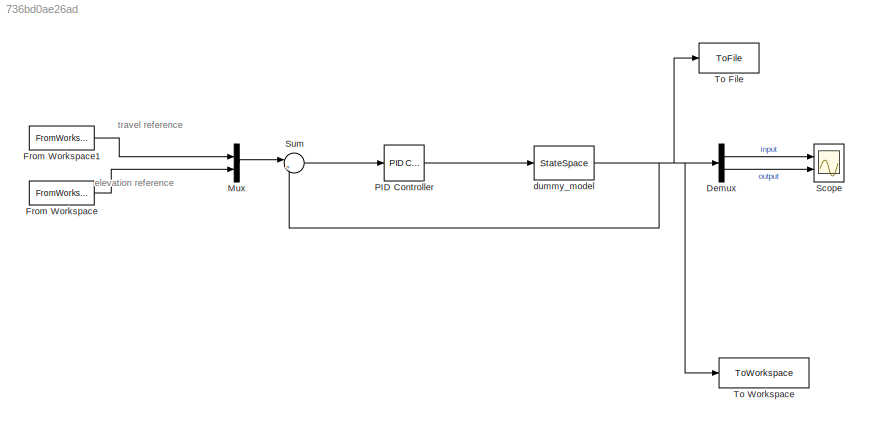
MODEL slx_736bd0ae26ad
KIND model
CONFIG AbsTol = auto
CONFIG EnableMultiTasking = off
CONFIG FixedStep = auto
CONFIG MaxStep = 0.2
CONFIG MinStep = auto
CONFIG RelTol = 1e-3
CONFIG SampleTimeConstraint = Unconstrained
CONFIG SolverName = VariableStepAuto
CONFIG StartTime = 0.0
CONFIG StopTime = 10.0
BLOCK [Demux] Demux
  Outputs = 2
  Ports = [1, 2]
BLOCK [FromWorkspace] From Workspace
  VariableName = sim_input_elev
BLOCK [FromWorkspace] From Workspace1
  VariableName = sim_input_trav
BLOCK [Mux] Mux
  DisplayOption = bar
  Inputs = 2
  Ports = [2, 1]
BLOCK [Reference] PID Controller  REF=pid_lib/PID Controller
  Ports = [1, 1]
  SourceBlock = pid_lib/PID Controller
  SourceProductBaseCode = SL
  SourceType = PID 1dof
BLOCK [Scope] Scope
  Floating = off
  NumInputPorts = 2
  Ports = [2]
  ScopeSpecificationString = Simulink.scopes.TimeScopeBlockCfg('CurrentConfiguration', extmgr.ConfigurationSet(extmgr.Configuration('Core','General UI',true),extmgr.Configuration('Core','Source UI',true),extmgr.Configuration('Sources','WiredSimulink',true),extmgr.Configuration('Visuals','Time Domain',true,'SerializedDisplays',{struct('MinYLimReal','-0.50547','MaxYLimReal','4.5517','YLabelReal','','MinYLimMag','0.00000','MaxYL...<+1402ch>
BLOCK [Sum] Sum
  Inputs = |+-
  Ports = [2, 1]
BLOCK [ToFile] To File
  Filename = time_data1.mat
  Ports = [1]
  SaveFormat = Timeseries
BLOCK [ToWorkspace] To Workspace
  FixptAsFi = on
  MaxDataPoints = inf
  Ports = [1]
  SampleTime = -1
  SaveFormat = Timeseries
  VariableName = simout
BLOCK [StateSpace] dummy_model
  A = A
  B = B
  C = C
  D = D
  InitialCondition = X0
  Ports = [1, 1]
ANNOTATION (root): elevation reference
ANNOTATION (root): travel reference
LINE Demux:1 -> Scope:1
LINE Demux:2 -> Scope:2
LINE From Workspace1:1 -> Mux:1
LINE From Workspace:1 -> Mux:2
LINE Mux:1 -> Sum:1
LINE PID Controller:1 -> dummy_model:1
LINE Sum:1 -> PID Controller:1
NET dummy_model:1 -> Demux:1, Sum:2, To File:1, To Workspace:1
note: NET lines group one-source signal fan-out (src -> all destinations, sorted); 1:1 wires keep LINE
